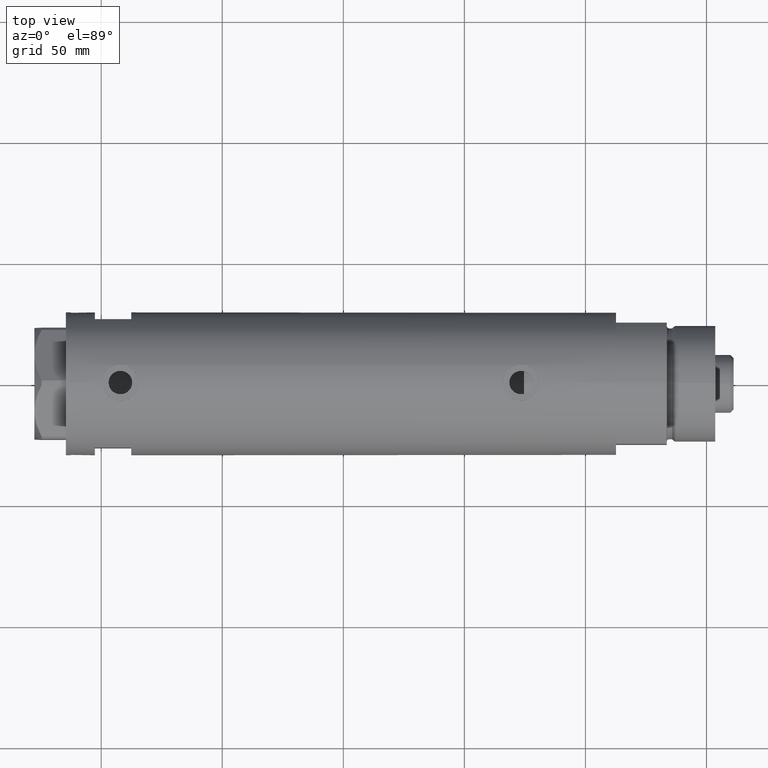
[diagram: clean part render]
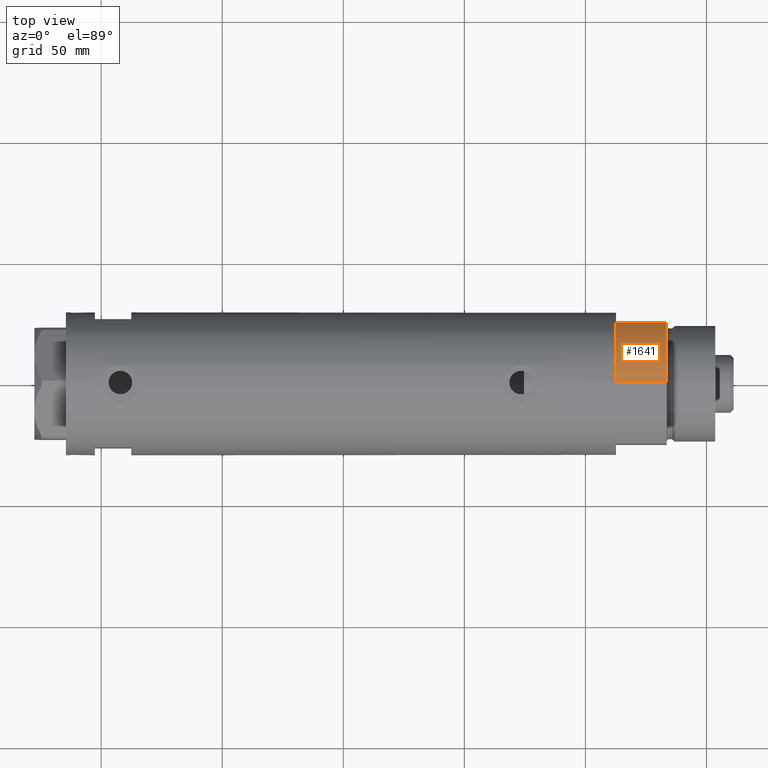
[diagram: same view with one face highlighted and labeled with its STEP entity id]
A machine part, top view. The second image highlights one B-rep face of the part: STEP entity #1641.
In plain terms, the highlighted cylindrical surface (partial cylindrical patch) has radius 29.5 mm, axis along (-1, -0, 0).
Its self-contained STEP definition (entity closure, byte-faithful):
#184 = VERTEX_POINT ( 'NONE', #2302 ) ;
#498 = DIRECTION ( 'NONE',  ( 0.000000000000000000, 0.000000000000000000, 1.000000000000000000 ) ) ;
#585 = ORIENTED_EDGE ( 'NONE', *, *, #2495, .T. ) ;
#586 = CARTESIAN_POINT ( 'NONE',  ( 0.000000000000000000, 0.000000000000000000, 21.00000000000000000 ) ) ;
#674 = LINE ( 'NONE', #3233, #2956 ) ;
#863 = AXIS2_PLACEMENT_3D ( 'NONE', #4619, #498, #1952 ) ;
#937 = EDGE_CURVE ( 'NONE', #184, #4438, #2318, .T. ) ;
#1094 = AXIS2_PLACEMENT_3D ( 'NONE', #586, #4282, #2775 ) ;
#1294 = CYLINDRICAL_SURFACE ( 'NONE', #1094, 29.50000000000000355 ) ;
#1509 = EDGE_CURVE ( 'NONE', #1829, #184, #1945, .T. ) ;
#1546 = AXIS2_PLACEMENT_3D ( 'NONE', #2152, #4009, #4682 ) ;
#1641 = ADVANCED_FACE ( 'NONE', ( #3462 ), #1294, .T. ) ;
#1779 = VECTOR ( 'NONE', #4070, 1000.000000000000000 ) ;
#1829 = VERTEX_POINT ( 'NONE', #4777 ) ;
#1945 = LINE ( 'NONE', #2215, #1779 ) ;
#1952 = DIRECTION ( 'NONE',  ( 1.000000000000000000, 0.000000000000000000, 0.000000000000000000 ) ) ;
#2152 = CARTESIAN_POINT ( 'NONE',  ( 0.000000000000000000, 0.000000000000000000, 21.00000000000000000 ) ) ;
#2215 = CARTESIAN_POINT ( 'NONE',  ( -15.66045976336583401, 25.00000000000000000, 0.000000000000000000 ) ) ;
#2302 = CARTESIAN_POINT ( 'NONE',  ( -15.66045976336583045, 24.99999999999999645, 21.00000000000000355 ) ) ;
#2318 = CIRCLE ( 'NONE', #1546, 29.50000000000000355 ) ;
#2495 = EDGE_CURVE ( 'NONE', #1829, #3440, #2957, .T. ) ;
#2548 = ORIENTED_EDGE ( 'NONE', *, *, #937, .F. ) ;
#2775 = DIRECTION ( 'NONE',  ( -1.000000000000000000, 0.000000000000000000, 0.000000000000000000 ) ) ;
#2817 = CARTESIAN_POINT ( 'NONE',  ( -29.50000000000000355, 0.000000000000000000, 21.00000000000000000 ) ) ;
#2843 = CARTESIAN_POINT ( 'NONE',  ( -29.50000000000000355, 0.000000000000000000, 0.000000000000000000 ) ) ;
#2956 = VECTOR ( 'NONE', #4695, 1000.000000000000000 ) ;
#2957 = CIRCLE ( 'NONE', #863, 29.50000000000000355 ) ;
#3233 = CARTESIAN_POINT ( 'NONE',  ( -29.50000000000000355, 0.000000000000000000, 21.00000000000000000 ) ) ;
#3440 = VERTEX_POINT ( 'NONE', #2843 ) ;
#3462 = FACE_OUTER_BOUND ( 'NONE', #4641, .T. ) ;
#3534 = ORIENTED_EDGE ( 'NONE', *, *, #3713, .F. ) ;
#3713 = EDGE_CURVE ( 'NONE', #4438, #3440, #674, .T. ) ;
#3834 = ORIENTED_EDGE ( 'NONE', *, *, #1509, .F. ) ;
#4009 = DIRECTION ( 'NONE',  ( 0.000000000000000000, 0.000000000000000000, 1.000000000000000000 ) ) ;
#4070 = DIRECTION ( 'NONE',  ( -0.000000000000000000, -0.000000000000000000, 1.000000000000000000 ) ) ;
#4282 = DIRECTION ( 'NONE',  ( -0.000000000000000000, -0.000000000000000000, -1.000000000000000000 ) ) ;
#4438 = VERTEX_POINT ( 'NONE', #2817 ) ;
#4619 = CARTESIAN_POINT ( 'NONE',  ( 0.000000000000000000, 0.000000000000000000, 0.000000000000000000 ) ) ;
#4641 = EDGE_LOOP ( 'NONE', ( #3534, #2548, #3834, #585 ) ) ;
#4682 = DIRECTION ( 'NONE',  ( 1.000000000000000000, 0.000000000000000000, 0.000000000000000000 ) ) ;
#4695 = DIRECTION ( 'NONE',  ( -0.000000000000000000, -0.000000000000000000, -1.000000000000000000 ) ) ;
#4777 = CARTESIAN_POINT ( 'NONE',  ( -15.66045976336583401, 25.00000000000000000, 0.000000000000000000 ) ) ;